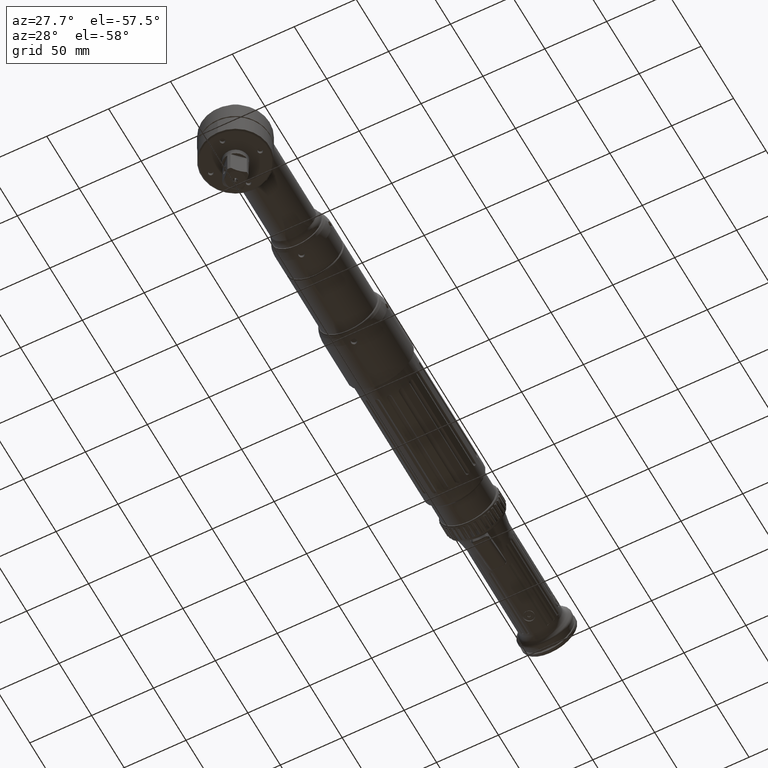
[diagram: clean part render]
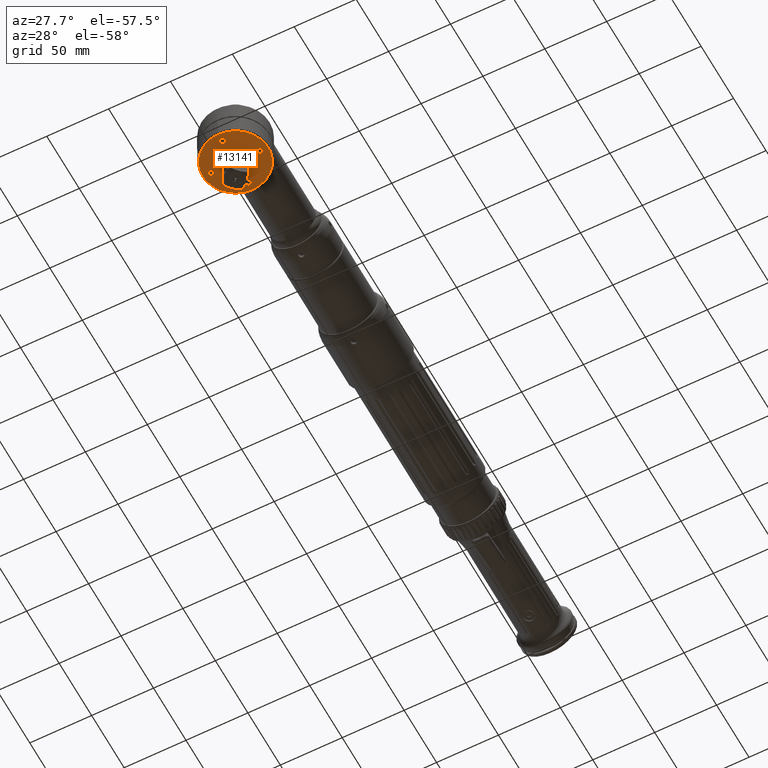
[diagram: same view with one face highlighted and labeled with its STEP entity id]
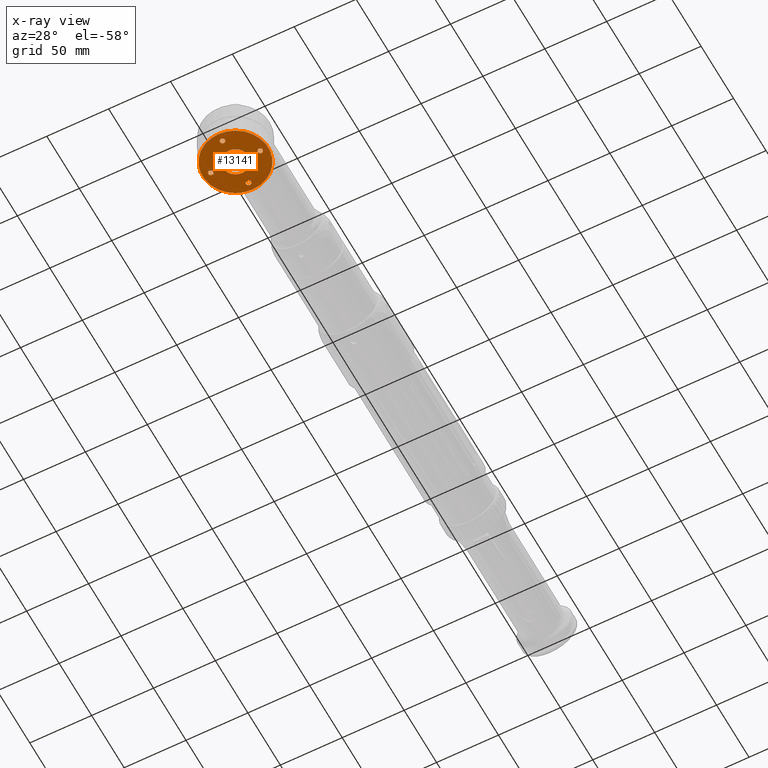
[diagram: x-ray of the same camera — body ghosted, the highlighted face saturated]
A machine part, auxiliary view. The second image highlights one B-rep face of the part: STEP entity #13141.
The next image is the same camera in x-ray: the body ghosted, the highlighted face saturated — about 0% of this face is hidden behind the body in this view.
In plain terms, the highlighted planar face has unit normal (0, 0, -1).
Its self-contained STEP definition (entity closure, byte-faithful):
#1899=FACE_BOUND('',#3585,.T.);
#1900=FACE_BOUND('',#3586,.T.);
#1901=FACE_BOUND('',#3587,.T.);
#1902=FACE_BOUND('',#3588,.T.);
#1903=FACE_BOUND('',#3589,.T.);
#2135=PLANE('',#14039);
#2719=FACE_OUTER_BOUND('',#3584,.T.);
#3584=EDGE_LOOP('',(#8766));
#3585=EDGE_LOOP('',(#8767));
#3586=EDGE_LOOP('',(#8768));
#3587=EDGE_LOOP('',(#8769));
#3588=EDGE_LOOP('',(#8770));
#3589=EDGE_LOOP('',(#8771));
#4635=CIRCLE('',#14038,10.55);
#4636=CIRCLE('',#14040,26.5);
#4637=CIRCLE('',#14041,2.05);
#4638=CIRCLE('',#14042,2.05);
#4639=CIRCLE('',#14043,2.05);
#4640=CIRCLE('',#14044,2.05);
#5624=VERTEX_POINT('',#20479);
#5625=VERTEX_POINT('',#20482);
#5626=VERTEX_POINT('',#20484);
#5627=VERTEX_POINT('',#20486);
#5628=VERTEX_POINT('',#20488);
#5629=VERTEX_POINT('',#20490);
#6870=EDGE_CURVE('',#5624,#5624,#4635,.T.);
#6871=EDGE_CURVE('',#5625,#5625,#4636,.T.);
#6872=EDGE_CURVE('',#5626,#5626,#4637,.T.);
#6873=EDGE_CURVE('',#5627,#5627,#4638,.T.);
#6874=EDGE_CURVE('',#5628,#5628,#4639,.T.);
#6875=EDGE_CURVE('',#5629,#5629,#4640,.T.);
#8766=ORIENTED_EDGE('',*,*,#6871,.F.);
#8767=ORIENTED_EDGE('',*,*,#6872,.T.);
#8768=ORIENTED_EDGE('',*,*,#6873,.T.);
#8769=ORIENTED_EDGE('',*,*,#6874,.T.);
#8770=ORIENTED_EDGE('',*,*,#6875,.T.);
#8771=ORIENTED_EDGE('',*,*,#6870,.F.);
#13141=ADVANCED_FACE('',(#2719,#1899,#1900,#1901,#1902,#1903),#2135,.T.);
#14038=AXIS2_PLACEMENT_3D('',#20480,#15884,#15885);
#14039=AXIS2_PLACEMENT_3D('',#20481,#15886,#15887);
#14040=AXIS2_PLACEMENT_3D('',#20483,#15888,#15889);
#14041=AXIS2_PLACEMENT_3D('',#20485,#15890,#15891);
#14042=AXIS2_PLACEMENT_3D('',#20487,#15892,#15893);
#14043=AXIS2_PLACEMENT_3D('',#20489,#15894,#15895);
#14044=AXIS2_PLACEMENT_3D('',#20491,#15896,#15897);
#15884=DIRECTION('center_axis',(3.1555773174342E-15,1.63318859284037E-31,
-1.));
#15885=DIRECTION('ref_axis',(1.11022302462516E-16,1.,5.1365831866407E-31));
#15886=DIRECTION('center_axis',(3.1555773174342E-15,1.63318859284037E-31,
-1.));
#15887=DIRECTION('ref_axis',(1.,0.,2.8421709430404E-15));
#15888=DIRECTION('center_axis',(-3.1555773174342E-15,-1.63318859284037E-31,
1.));
#15889=DIRECTION('ref_axis',(1.11022302462515E-16,1.,5.1365831866407E-31));
#15890=DIRECTION('center_axis',(-3.1555773174342E-15,-1.63318859284037E-31,
1.));
#15891=DIRECTION('ref_axis',(1.,-1.11022302462515E-16,3.1555773174342E-15));
#15892=DIRECTION('center_axis',(-3.1555773174342E-15,-1.63318859284037E-31,
1.));
#15893=DIRECTION('ref_axis',(1.,-1.11022302462515E-16,3.1555773174342E-15));
#15894=DIRECTION('center_axis',(-3.1555773174342E-15,-1.63318859284037E-31,
1.));
#15895=DIRECTION('ref_axis',(1.,-1.11022302462515E-16,3.1555773174342E-15));
#15896=DIRECTION('center_axis',(-3.1555773174342E-15,-1.63318859284037E-31,
1.));
#15897=DIRECTION('ref_axis',(1.,-1.11022302462515E-16,3.1555773174342E-15));
#20479=CARTESIAN_POINT('',(2.55776421242412E-15,-10.55,-40.9999999999998));
#20480=CARTESIAN_POINT('Origin',(5.02105187650412E-15,1.77635683940025E-14,
-40.9999999999998));
#20481=CARTESIAN_POINT('Origin',(1.96793855878495E-15,-27.5,-40.9999999999998));
#20482=CARTESIAN_POINT('',(5.32427487898795E-15,-26.5,-40.9999999999998));
#20483=CARTESIAN_POINT('Origin',(5.02105187650412E-15,1.77635683940025E-14,
-40.9999999999998));
#20484=CARTESIAN_POINT('',(2.05000000000001,20.,-40.9999999999998));
#20485=CARTESIAN_POINT('Origin',(9.69079152404914E-15,20.,-40.9999999999998));
#20486=CARTESIAN_POINT('',(2.05,-20.,-40.9999999999998));
#20487=CARTESIAN_POINT('Origin',(4.5810313530309E-16,-20.,-40.9999999999998));
#20488=CARTESIAN_POINT('',(-17.95,1.97564187232047E-14,-40.9999999999999));
#20489=CARTESIAN_POINT('Origin',(-20.,1.99840144432528E-14,-40.9999999999999));
#20490=CARTESIAN_POINT('',(22.05,1.53155266247041E-14,-40.9999999999998));
#20491=CARTESIAN_POINT('Origin',(20.,1.55431223447522E-14,-40.9999999999998));